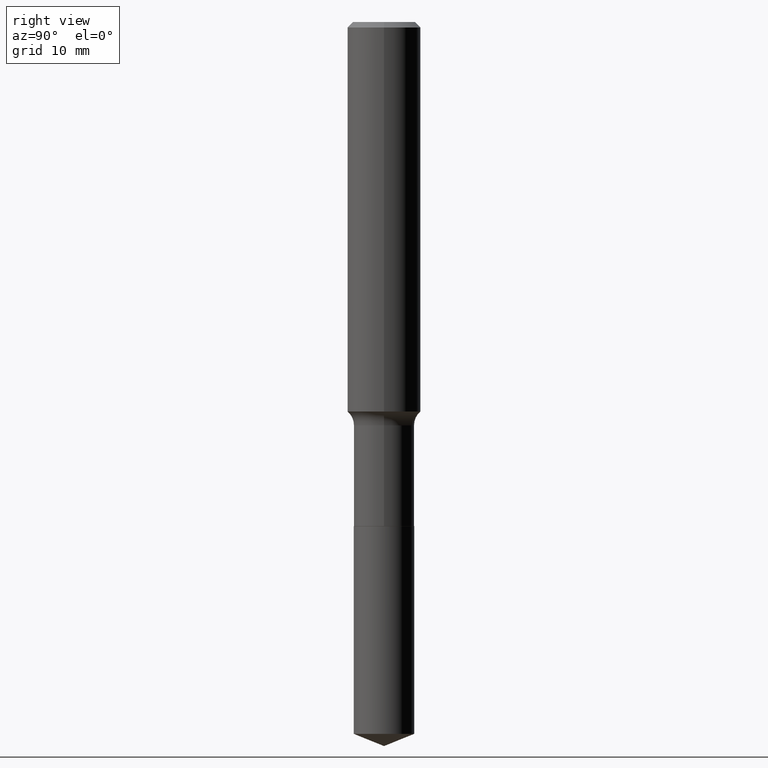
[diagram: clean part render]
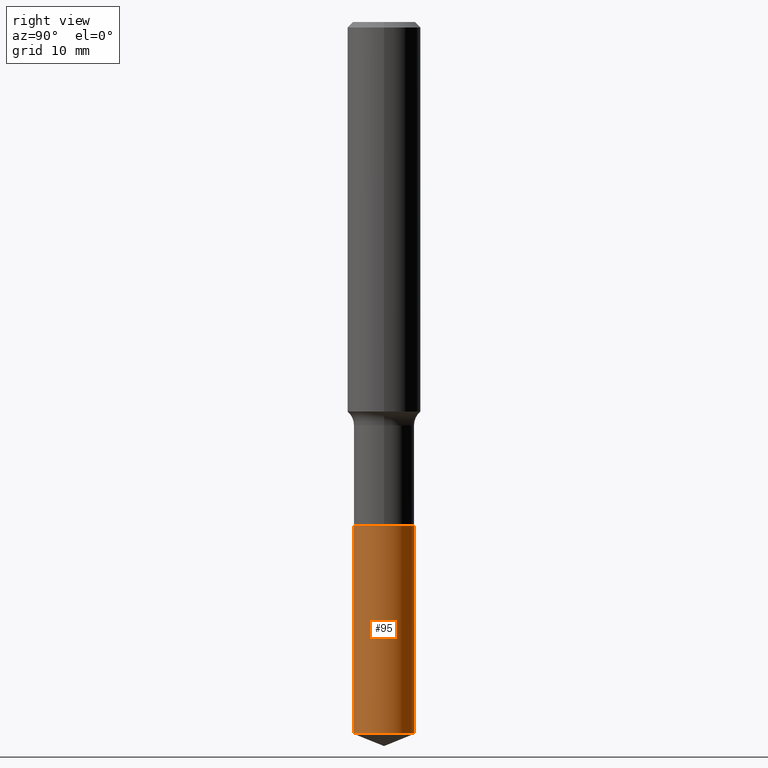
[diagram: same view with one face highlighted and labeled with its STEP entity id]
A machine part, right view. The second image highlights one B-rep face of the part: STEP entity #95.
In plain terms, the highlighted cylindrical surface (edge-blend (fillet) strip) has radius 3.2995 mm, axis along (-0, 0, 1).
Its self-contained STEP definition (entity closure, byte-faithful):
#5 = CARTESIAN_POINT ( 'NONE',  ( 9.229950137524449958E-16, 0.1298999999999893573, -3.057716993264014249 ) ) ;
#7 = DIRECTION ( 'NONE',  ( -2.445364985460457851E-29, 3.491630016029994283E-15, 1.000000000000000000 ) ) ;
#9 = AXIS2_PLACEMENT_3D ( 'NONE', #98, #477, #134 ) ;
#12 = EDGE_CURVE ( 'NONE', #205, #119, #395, .T. ) ;
#59 = DIRECTION ( 'NONE',  ( -2.445364985460457851E-29, 3.491630016029994283E-15, 1.000000000000000000 ) ) ;
#95 = ADVANCED_FACE ( 'NONE', ( #274 ), #490, .T. ) ;
#97 = VERTEX_POINT ( 'NONE', #231 ) ;
#98 = CARTESIAN_POINT ( 'NONE',  ( 5.295173606032675561E-29, -7.560104542997063911E-15, -2.165299999999999780 ) ) ;
#111 = DIRECTION ( 'NONE',  ( -6.982962677686266711E-15, -1.000000000000000000, 4.206078512185163024E-15 ) ) ;
#117 = DIRECTION ( 'NONE',  ( -2.445364985460457851E-29, 3.491630016029994283E-15, 1.000000000000000000 ) ) ;
#119 = VERTEX_POINT ( 'NONE', #150 ) ;
#134 = DIRECTION ( 'NONE',  ( -6.982962677686266711E-15, -1.000000000000000000, 4.206078512185163024E-15 ) ) ;
#146 = DIRECTION ( 'NONE',  ( -2.445364985460457851E-29, 3.491630016029994283E-15, 1.000000000000000000 ) ) ;
#147 = EDGE_CURVE ( 'NONE', #349, #205, #269, .T. ) ;
#150 = CARTESIAN_POINT ( 'NONE',  ( 9.229950137524447986E-16, 0.1298999999999924382, -2.165300000000000669 ) ) ;
#158 = CIRCLE ( 'NONE', #9, 0.1298999999999999877 ) ;
#181 = CARTESIAN_POINT ( 'NONE',  ( -9.070868518313931384E-16, -0.1299000000000075650, -2.165299999999999336 ) ) ;
#187 = AXIS2_PLACEMENT_3D ( 'NONE', #357, #7, #189 ) ;
#189 = DIRECTION ( 'NONE',  ( -6.982962677686266711E-15, -1.000000000000000000, 4.206078512185163024E-15 ) ) ;
#193 = CARTESIAN_POINT ( 'NONE',  ( 5.295173606032675561E-29, -7.560104542997063911E-15, -2.165299999999999780 ) ) ;
#205 = VERTEX_POINT ( 'NONE', #5 ) ;
#231 = CARTESIAN_POINT ( 'NONE',  ( -9.070868518313931384E-16, -0.1299000000000075650, -2.165299999999999336 ) ) ;
#259 = VECTOR ( 'NONE', #117, 39.37007874015748143 ) ;
#269 = CIRCLE ( 'NONE', #187, 0.1298999999999999877 ) ;
#274 = FACE_OUTER_BOUND ( 'NONE', #472, .T. ) ;
#323 = CARTESIAN_POINT ( 'NONE',  ( -9.070868518313712475E-16, -0.1299000000000107014, -3.057716993264013361 ) ) ;
#328 = ORIENTED_EDGE ( 'NONE', *, *, #147, .T. ) ;
#349 = VERTEX_POINT ( 'NONE', #323 ) ;
#353 = ORIENTED_EDGE ( 'NONE', *, *, #423, .F. ) ;
#357 = CARTESIAN_POINT ( 'NONE',  ( 7.477458873790397149E-29, -1.067609450349293200E-14, -3.057716993264013805 ) ) ;
#374 = ORIENTED_EDGE ( 'NONE', *, *, #12, .T. ) ;
#395 = LINE ( 'NONE', #467, #259 ) ;
#419 = AXIS2_PLACEMENT_3D ( 'NONE', #193, #146, #111 ) ;
#423 = EDGE_CURVE ( 'NONE', #349, #97, #452, .T. ) ;
#443 = EDGE_CURVE ( 'NONE', #97, #119, #158, .T. ) ;
#452 = LINE ( 'NONE', #181, #455 ) ;
#455 = VECTOR ( 'NONE', #59, 39.37007874015748143 ) ;
#466 = ORIENTED_EDGE ( 'NONE', *, *, #443, .F. ) ;
#467 = CARTESIAN_POINT ( 'NONE',  ( 9.229950137524229077E-16, 0.1298999999999924382, -2.165300000000000669 ) ) ;
#472 = EDGE_LOOP ( 'NONE', ( #328, #374, #466, #353 ) ) ;
#477 = DIRECTION ( 'NONE',  ( -2.445364985460457851E-29, 3.491630016029994283E-15, 1.000000000000000000 ) ) ;
#490 = CYLINDRICAL_SURFACE ( 'NONE', #419, 0.1298999999999999877 ) ;